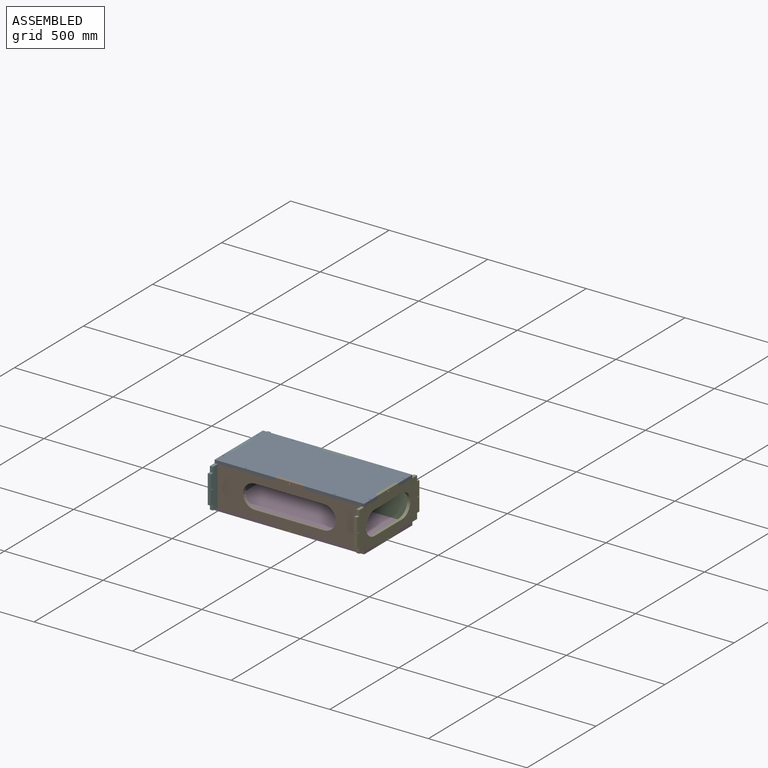
[diagram: assembled view]
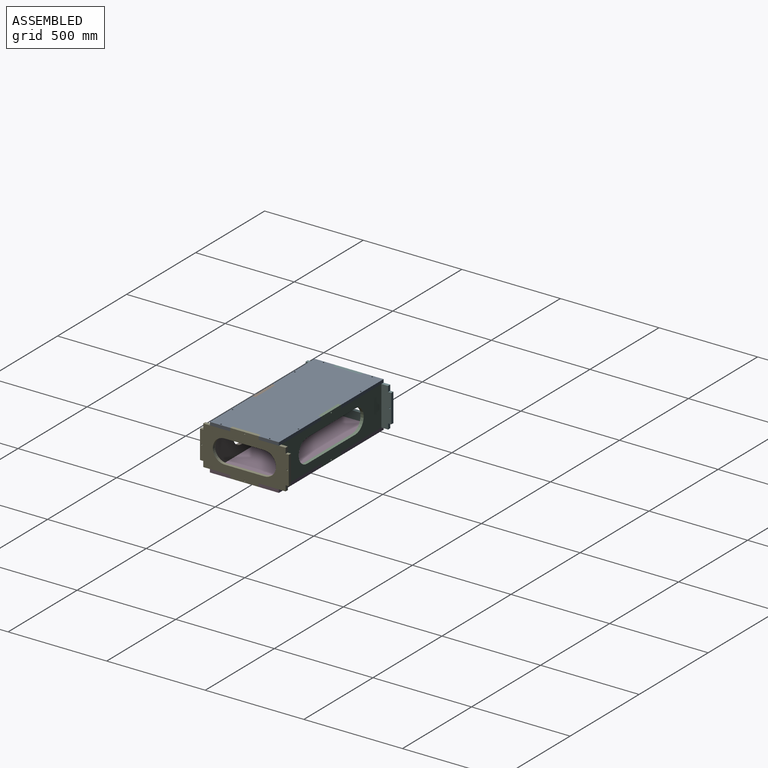
[diagram: assembled view, second angle]
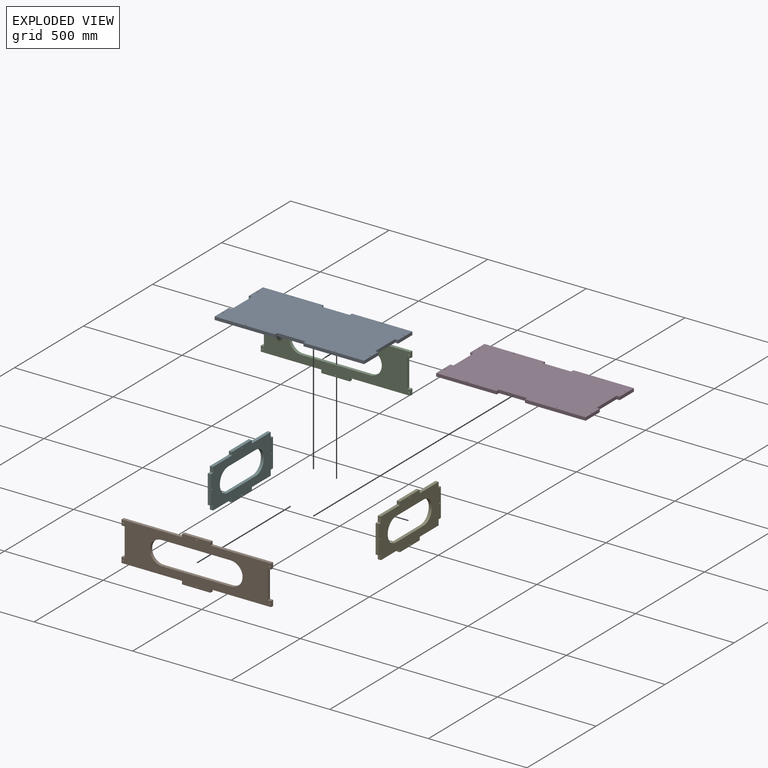
[diagram: exploded view]
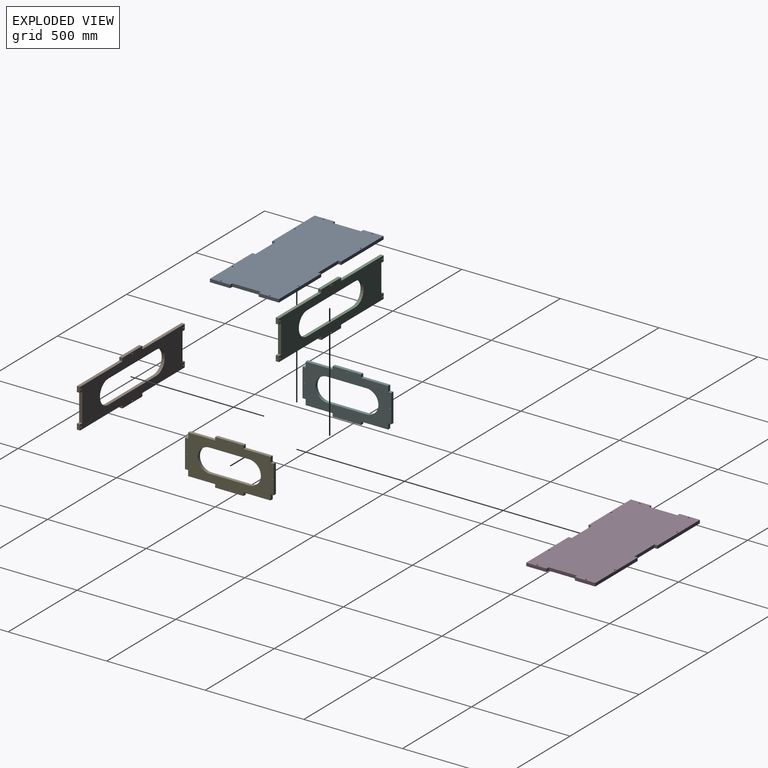
[diagram: exploded view, second angle]
ASSEMBLY  parts=6 mates=5
PART A: 30 faces, bbox 758x350x16 mm
  f0: plane 103x16mm, normal (1,0,0), area 1648mm2, adj f4,f8,f9,f14
  f1: plane 307x16mm, normal (0,1,0), area 4912mm2, adj f2,f4,f9,f21
  f2: plane 103x16mm, normal (-1,0,0), area 1648mm2, adj f1,f4,f9,f12
  f3: plane 307x16mm, normal (0,-1,0), area 4912mm2, adj f4,f7,f9,f17
  f4: plane 758x350mm, normal (0,0,1), area 255776.1mm2, adj f0,f1,f2,f3,f5,f6,f7,f8
  f5: plane 103x16mm, normal (1,0,0), area 1648mm2, adj f4,f6,f9,f15
  f6: plane 307x16mm, normal (0,1,0), area 4912mm2, adj f4,f5,f9,f20
  f7: plane 103x16mm, normal (-1,0,0), area 1648mm2, adj f3,f4,f9,f11
  f8: plane 307x16mm, normal (0,-1,0), area 4912mm2, adj f0,f4,f9,f18
  f9: plane 758x350mm, normal (0,0,-1), area 255776.1mm2, adj f0,f1,f2,f3,f5,f6,f7,f8
  f10: plane 144x16mm, normal (-1,0,0), area 2304mm2, adj f4,f9,f11,f12
  f11: plane 16x16mm, normal (0,1,0), area 256mm2, adj f4,f7,f9,f10
  f12: plane 16x16mm, normal (0,-1,0), area 256mm2, adj f2,f4,f9,f10
  f13: plane 144x16mm, normal (1,0,0), area 2304mm2, adj f4,f9,f14,f15
  f14: plane 16x16mm, normal (0,1,0), area 256mm2, adj f0,f4,f9,f13
  f15: plane 16x16mm, normal (0,-1,0), area 256mm2, adj f4,f5,f9,f13
  f16: plane 144x16mm, normal (0,-1,0), area 2304mm2, adj f4,f9,f17,f18
  f17: plane 16x16mm, normal (1,0,0), area 256mm2, adj f3,f4,f9,f16
  f18: plane 16x16mm, normal (-1,0,0), area 256mm2, adj f4,f8,f9,f16
  f19: plane 144x16mm, normal (0,1,0), area 2304mm2, adj f4,f9,f20,f21
  f20: plane 16x16mm, normal (-1,0,0), area 256mm2, adj f4,f6,f9,f19
  f21: plane 16x16mm, normal (1,0,0), area 256mm2, adj f1,f4,f9,f19
  f22: cylinder r=3.5mm len=16mm, axis (0,0,1), area 351.9mm2, adj f4,f9
  f23: cylinder r=3.5mm len=16mm, axis (0,0,1), area 351.9mm2, adj f4,f9
  f24: cylinder r=3.5mm len=16mm, axis (0,0,1), area 351.9mm2, adj f4,f9
  f25: cylinder r=3.5mm len=16mm, axis (0,0,1), area 351.9mm2, adj f4,f9
  f26: cylinder r=3.5mm len=16mm, axis (0,0,1), area 351.9mm2, adj f4,f9
  f27: cylinder r=3.5mm len=16mm, axis (0,0,1), area 351.9mm2, adj f4,f9
  f28: cylinder r=3.5mm len=16mm, axis (0,0,1), area 351.9mm2, adj f4,f9
  f29: cylinder r=3.5mm len=16mm, axis (0,0,1), area 351.9mm2, adj f4,f9
PART B: 32 faces, bbox 758x16x232 mm
  f0: plane 28x16mm, normal (1,0,0), area 448mm2, adj f6,f18,f19,f24
  f1: plane 28x16mm, normal (-1,0,0), area 448mm2, adj f2,f18,f19,f20
  f2: plane 307x16mm, normal (0,0,-1), area 4912mm2, adj f1,f3,f18,f19
  f3: plane 16x16mm, normal (-1,0,0), area 256mm2, adj f2,f4,f18,f19
  f4: plane 144x16mm, normal (0,0,-1), area 2304mm2, adj f3,f5,f18,f19
  f5: plane 16x16mm, normal (1,0,0), area 256mm2, adj f4,f6,f18,f19
  f6: plane 307x16mm, normal (0,0,-1), area 4912mm2, adj f0,f5,f18,f19
  f7: plane 28x16mm, normal (1,0,0), area 448mm2, adj f8,f18,f19,f23
  f8: plane 307x16mm, normal (0,0,1), area 4912mm2, adj f7,f9,f18,f19
  f9: plane 16x16mm, normal (1,0,0), area 256mm2, adj f8,f10,f18,f19
  f10: plane 144x16mm, normal (0,0,1), area 2304mm2, adj f9,f11,f18,f19
  f11: plane 16x16mm, normal (-1,0,0), area 256mm2, adj f10,f12,f18,f19
  f12: plane 307x16mm, normal (0,0,1), area 4912mm2, adj f11,f17,f18,f19
  f13: cylinder r=60mm len=120mm, axis (0,-1,0), area 3015.9mm2, adj f14,f16,f18,f19
  f14: plane 350x16mm, normal (0,0,-1), area 5600mm2, adj f13,f15,f18,f19
  f15: cylinder r=60mm len=120mm, axis (0,-1,0), area 3015.9mm2, adj f14,f16,f18,f19
  f16: plane 350x16mm, normal (0,0,1), area 5600mm2, adj f13,f15,f18,f19
  f17: plane 28x16mm, normal (-1,0,0), area 448mm2, adj f12,f18,f19,f21
  f18: plane 758x232mm, normal (0,1,0), area 98059.4mm2, adj f0,f1,f2,f3,f4,f5,f6,f7
  f19: plane 758x232mm, normal (0,-1,0), area 98059.4mm2, adj f0,f1,f2,f3,f4,f5,f6,f7
  f20: plane 16x16mm, normal (0,0,1), area 256mm2, adj f1,f18,f19,f22
  f21: plane 16x16mm, normal (0,0,-1), area 256mm2, adj f17,f18,f19,f22
  f22: plane 144x16mm, normal (-1,0,0), area 2304mm2, adj f18,f19,f20,f21
  f23: plane 16x16mm, normal (0,0,-1), area 256mm2, adj f7,f18,f19,f25
  f24: plane 16x16mm, normal (0,0,1), area 256mm2, adj f0,f18,f19,f25
  f25: plane 144x16mm, normal (1,0,0), area 2304mm2, adj f18,f19,f23,f24
  f26: cylinder r=3.5mm len=16mm, axis (0,-1,0), area 351.9mm2, adj f18,f19
  f27: cylinder r=3.5mm len=16mm, axis (0,-1,0), area 351.9mm2, adj f18,f19
  f28: cylinder r=3.5mm len=16mm, axis (0,-1,0), area 351.9mm2, adj f18,f19
  f29: cylinder r=3.5mm len=16mm, axis (0,-1,0), area 351.9mm2, adj f18,f19
  f30: cylinder r=3.5mm len=16mm, axis (0,-1,0), area 351.9mm2, adj f18,f19
  f31: cylinder r=3.5mm len=16mm, axis (0,-1,0), area 351.9mm2, adj f18,f19
PART C: same geometry as B
PART D: same geometry as A
PART E: 30 faces, bbox 450x232x16 mm
  f0: plane 28x16mm, normal (-1,0,0), area 448mm2, adj f1,f23,f24,f25
  f1: plane 16x16mm, normal (0,1,0), area 256mm2, adj f0,f2,f24,f25
  f2: plane 144x16mm, normal (-1,0,0), area 2304mm2, adj f1,f3,f24,f25
  f3: plane 16x16mm, normal (0,-1,0), area 256mm2, adj f2,f4,f24,f25
  f4: plane 28x16mm, normal (-1,0,0), area 448mm2, adj f3,f5,f24,f25
  f5: plane 137x16mm, normal (0,-1,0), area 2192mm2, adj f4,f6,f24,f25
  f6: plane 16x16mm, normal (-1,0,0), area 256mm2, adj f5,f7,f24,f25
  f7: plane 144x16mm, normal (0,-1,0), area 2304mm2, adj f6,f8,f24,f25
  f8: plane 16x16mm, normal (1,0,0), area 256mm2, adj f7,f9,f24,f25
  f9: plane 137x16mm, normal (0,-1,0), area 2192mm2, adj f8,f10,f24,f25
  f10: plane 28x16mm, normal (1,0,0), area 448mm2, adj f9,f11,f24,f25
  f11: plane 16x16mm, normal (0,-1,0), area 256mm2, adj f10,f12,f24,f25
  f12: plane 144x16mm, normal (1,0,0), area 2304mm2, adj f11,f13,f24,f25
  f13: plane 16x16mm, normal (0,1,0), area 256mm2, adj f12,f14,f24,f25
  f14: plane 28x16mm, normal (1,0,0), area 448mm2, adj f13,f15,f24,f25
  f15: plane 137x16mm, normal (0,1,0), area 2192mm2, adj f14,f16,f24,f25
  f16: plane 16x16mm, normal (1,0,0), area 256mm2, adj f15,f17,f24,f25
  f17: plane 144x16mm, normal (0,1,0), area 2304mm2, adj f16,f18,f24,f25
  f18: plane 16x16mm, normal (-1,0,0), area 256mm2, adj f17,f23,f24,f25
  f19: cylinder r=60mm len=120mm, axis (0,0,1), area 3015.9mm2, adj f20,f22,f24,f25
  f20: plane 200x16mm, normal (0,-1,0), area 3200mm2, adj f19,f21,f24,f25
  f21: cylinder r=60mm len=120mm, axis (0,0,1), area 3015.9mm2, adj f20,f22,f24,f25
  f22: plane 200x16mm, normal (0,1,0), area 3200mm2, adj f19,f21,f24,f25
  f23: plane 137x16mm, normal (0,1,0), area 2192mm2, adj f0,f18,f24,f25
  f24: plane 450x232mm, normal (0,0,-1), area 57352.3mm2, adj f0,f1,f2,f3,f4,f5,f6,f7
  f25: plane 450x232mm, normal (0,0,1), area 57352.3mm2, adj f0,f1,f2,f3,f4,f5,f6,f7
  f26: cylinder r=3.5mm len=16mm, axis (0,0,1), area 351.9mm2, adj f24,f25
  f27: cylinder r=3.5mm len=16mm, axis (0,0,1), area 351.9mm2, adj f24,f25
  f28: cylinder r=3.5mm len=16mm, axis (0,0,1), area 351.9mm2, adj f24,f25
  f29: cylinder r=3.5mm len=16mm, axis (0,0,1), area 351.9mm2, adj f24,f25
PART F: same geometry as E
PLACE A t=(-119.03,-19.81,65.37)mm
PLACE B rot(axis=(0,0,1),180deg) t=(-589.89,-621.66,79.11)mm
PLACE C rot(axis=(0,0,1),180deg) t=(-589.89,-287.66,79.11)mm
PLACE D rot(axis=(0,0,1),180deg) t=(-119.03,-19.81,-150.63)mm
PLACE E rot(axis=(-0.58,-0.58,0.58),120deg) t=(243.97,-19.81,-160.63)mm
PLACE F rot(axis=(0.58,0.58,0.58),120deg) t=(-482.03,-19.81,91.37)mm
MATE fastened C.f18 <-> A.f19  axis (0,-1,0) through (-119.03,139.19,81.37)mm
MATE fastened F.f25 <-> A.f10  axis (1,0,0) through (-482.03,-19.81,81.37)mm
MATE fastened B.f19 <-> A.f16  axis (0,1,0) through (-119.03,-178.81,81.37)mm
MATE fastened E.f25 <-> A.f13  axis (-1,0,0) through (243.97,-19.81,81.37)mm
MATE fastened D.f19 <-> B.f19  axis (0,-1,0) through (-119.03,-178.81,-150.63)mm
